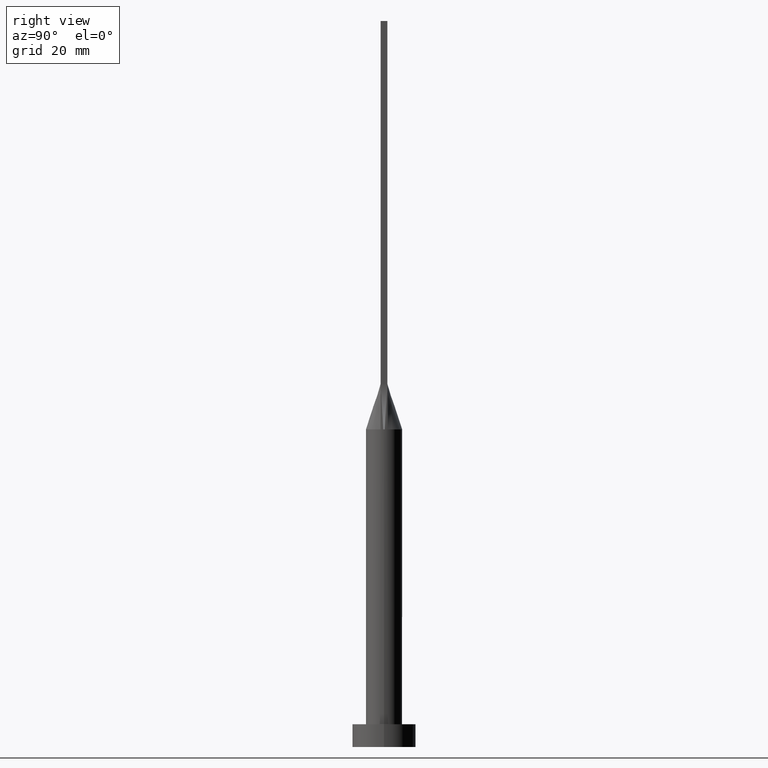
[diagram: clean part render]
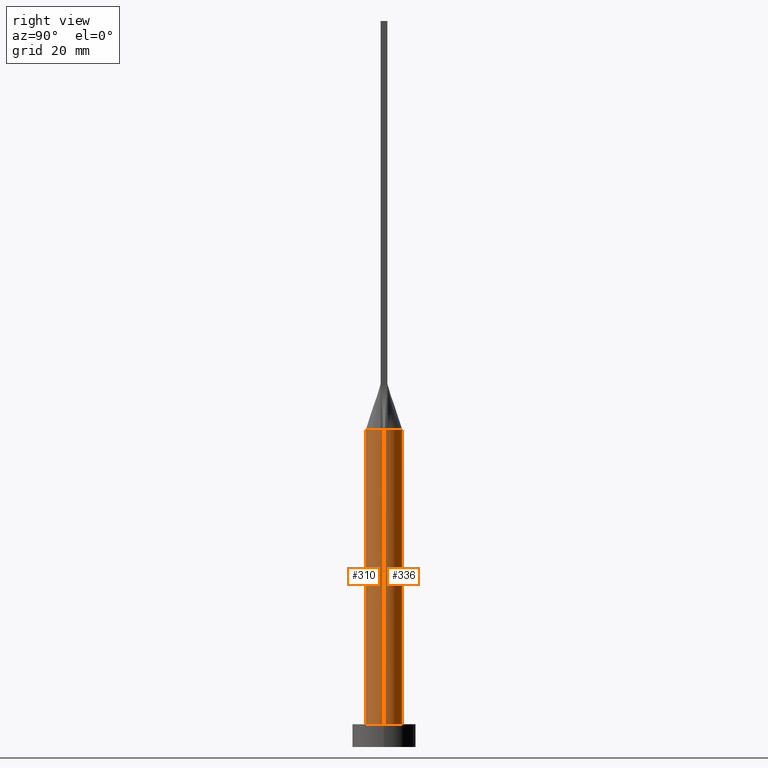
[diagram: same view with one multi-face feature highlighted, each face labeled with its STEP entity id]
A machine part, right view. The highlighted faces form ONE feature: a constant-radius fillet chain: 2 tangent blend faces with common blend radius 4 mm. The faces share edges in the B-rep.
Their STEP definitions:
[1] entity #310 (Cylinder):
#15 = CARTESIAN_POINT ( 'NONE',  ( 0.000000000000000000, 0.000000000000000000, 70.00000000000000000 ) ) ;
#20 = CARTESIAN_POINT ( 'NONE',  ( 0.000000000000000000, 0.000000000000000000, 70.00000000000000000 ) ) ;
#29 = ORIENTED_EDGE ( 'NONE', *, *, #163, .F. ) ;
#56 = CIRCLE ( 'NONE', #247, 4.000000000000000000 ) ;
#71 = CARTESIAN_POINT ( 'NONE',  ( 0.000000000000000000, 0.000000000000000000, 70.00000000000000000 ) ) ;
#73 = AXIS2_PLACEMENT_3D ( 'NONE', #71, #166, #440 ) ;
#88 = DIRECTION ( 'NONE',  ( -0.000000000000000000, -0.000000000000000000, -1.000000000000000000 ) ) ;
#102 = CARTESIAN_POINT ( 'NONE',  ( -4.000000000000000000, 0.000000000000000000, 70.00000000000000000 ) ) ;
#105 = EDGE_CURVE ( 'NONE', #436, #332, #468, .T. ) ;
#109 = EDGE_CURVE ( 'NONE', #198, #524, #318, .T. ) ;
#115 = CARTESIAN_POINT ( 'NONE',  ( 3.999622889843378992, 9.846808768795811108E-16, 70.00000000000000000 ) ) ;
#129 = DIRECTION ( 'NONE',  ( -0.000000000000000000, -0.000000000000000000, -1.000000000000000000 ) ) ;
#163 = EDGE_CURVE ( 'NONE', #554, #466, #235, .T. ) ;
#166 = DIRECTION ( 'NONE',  ( 0.000000000000000000, 0.000000000000000000, 1.000000000000000000 ) ) ;
#167 = DIRECTION ( 'NONE',  ( 0.000000000000000000, 0.000000000000000000, 1.000000000000000000 ) ) ;
#182 = EDGE_CURVE ( 'NONE', #198, #436, #56, .T. ) ;
#183 = DIRECTION ( 'NONE',  ( 1.000000000000000000, 0.000000000000000000, 0.000000000000000000 ) ) ;
#186 = CARTESIAN_POINT ( 'NONE',  ( 0.000000000000000000, 0.000000000000000000, 5.000000000000000000 ) ) ;
#187 = ORIENTED_EDGE ( 'NONE', *, *, #284, .T. ) ;
#188 = CARTESIAN_POINT ( 'NONE',  ( 0.000000000000000000, 0.000000000000000000, 70.00000000000000000 ) ) ;
#198 = VERTEX_POINT ( 'NONE', #367 ) ;
#210 = AXIS2_PLACEMENT_3D ( 'NONE', #186, #370, #556 ) ;
#230 = AXIS2_PLACEMENT_3D ( 'NONE', #188, #373, #559 ) ;
#235 = LINE ( 'NONE', #274, #573 ) ;
#242 = FACE_OUTER_BOUND ( 'NONE', #471, .T. ) ;
#247 = AXIS2_PLACEMENT_3D ( 'NONE', #20, #280, #183 ) ;
#274 = CARTESIAN_POINT ( 'NONE',  ( 4.000000000000000000, 4.898587196589412829E-16, 70.00000000000000000 ) ) ;
#279 = ORIENTED_EDGE ( 'NONE', *, *, #560, .F. ) ;
#280 = DIRECTION ( 'NONE',  ( 0.000000000000000000, 0.000000000000000000, 1.000000000000000000 ) ) ;
#284 = EDGE_CURVE ( 'NONE', #524, #466, #536, .T. ) ;
#302 = CARTESIAN_POINT ( 'NONE',  ( 3.922705552857197908, -0.7845410930675295047, 70.00000000000000000 ) ) ;
#310 = ADVANCED_FACE ( 'NONE', ( #242 ), #424, .T. ) ;
#318 = LINE ( 'NONE', #102, #389 ) ;
#332 = VERTEX_POINT ( 'NONE', #302 ) ;
#335 = ORIENTED_EDGE ( 'NONE', *, *, #105, .F. ) ;
#340 = AXIS2_PLACEMENT_3D ( 'NONE', #15, #167, #347 ) ;
#347 = DIRECTION ( 'NONE',  ( 1.000000000000000000, 0.000000000000000000, 0.000000000000000000 ) ) ;
#367 = CARTESIAN_POINT ( 'NONE',  ( -3.999622889843378992, -9.724176664205578004E-16, 70.00000000000000000 ) ) ;
#370 = DIRECTION ( 'NONE',  ( 0.000000000000000000, 0.000000000000000000, 1.000000000000000000 ) ) ;
#373 = DIRECTION ( 'NONE',  ( -0.000000000000000000, -0.000000000000000000, -1.000000000000000000 ) ) ;
#389 = VECTOR ( 'NONE', #88, 1000.000000000000000 ) ;
#396 = ORIENTED_EDGE ( 'NONE', *, *, #109, .T. ) ;
#407 = CARTESIAN_POINT ( 'NONE',  ( -3.922691619086878134, -0.7845384300002018474, 70.00000000000000000 ) ) ;
#424 = CYLINDRICAL_SURFACE ( 'NONE', #230, 4.000000000000000000 ) ;
#436 = VERTEX_POINT ( 'NONE', #407 ) ;
#440 = DIRECTION ( 'NONE',  ( 1.000000000000000000, -1.421085471520200372E-14, 0.000000000000000000 ) ) ;
#452 = CARTESIAN_POINT ( 'NONE',  ( 4.000000000000000000, 4.898587196589412829E-16, 5.000000000000000000 ) ) ;
#459 = ORIENTED_EDGE ( 'NONE', *, *, #182, .F. ) ;
#466 = VERTEX_POINT ( 'NONE', #452 ) ;
#468 = CIRCLE ( 'NONE', #340, 4.000000000000000000 ) ;
#471 = EDGE_LOOP ( 'NONE', ( #29, #279, #335, #459, #396, #187 ) ) ;
#522 = CARTESIAN_POINT ( 'NONE',  ( -4.000000000000000000, 0.000000000000000000, 5.000000000000000000 ) ) ;
#524 = VERTEX_POINT ( 'NONE', #522 ) ;
#536 = CIRCLE ( 'NONE', #210, 4.000000000000000000 ) ;
#554 = VERTEX_POINT ( 'NONE', #115 ) ;
#556 = DIRECTION ( 'NONE',  ( 1.000000000000000000, 0.000000000000000000, 0.000000000000000000 ) ) ;
#559 = DIRECTION ( 'NONE',  ( -1.000000000000000000, 0.000000000000000000, 0.000000000000000000 ) ) ;
#560 = EDGE_CURVE ( 'NONE', #332, #554, #563, .T. ) ;
#563 = CIRCLE ( 'NONE', #73, 4.000000000000000000 ) ;
#573 = VECTOR ( 'NONE', #129, 1000.000000000000000 ) ;
[2] entity #336 (Cylinder):
#1 = CIRCLE ( 'NONE', #311, 4.000000000000000000 ) ;
#3 = AXIS2_PLACEMENT_3D ( 'NONE', #348, #392, #345 ) ;
#11 = ORIENTED_EDGE ( 'NONE', *, *, #109, .F. ) ;
#12 = CARTESIAN_POINT ( 'NONE',  ( 0.000000000000000000, 0.000000000000000000, 70.00000000000000000 ) ) ;
#24 = CARTESIAN_POINT ( 'NONE',  ( -3.922691944042750123, 0.7845383302616953936, 70.00000000000000000 ) ) ;
#36 = CARTESIAN_POINT ( 'NONE',  ( -0.5465359351457050874, 4.000000000000000000, 69.99999999999998579 ) ) ;
#41 = EDGE_CURVE ( 'NONE', #379, #267, #528, .T. ) ;
#49 = DIRECTION ( 'NONE',  ( 0.000000000000000000, 0.000000000000000000, 1.000000000000000000 ) ) ;
#78 = CARTESIAN_POINT ( 'NONE',  ( 3.922678046951852959, 0.7845356715334603770, 70.00000000000000000 ) ) ;
#79 = CARTESIAN_POINT ( 'NONE',  ( 3.140797583654741931, 2.520780954342106028, 70.00000000000000000 ) ) ;
#82 = CARTESIAN_POINT ( 'NONE',  ( -3.390424152328988416, 2.159240079384419975, 70.00000000000001421 ) ) ;
#87 = CIRCLE ( 'NONE', #493, 4.000000000000000000 ) ;
#88 = DIRECTION ( 'NONE',  ( -0.000000000000000000, -0.000000000000000000, -1.000000000000000000 ) ) ;
#102 = CARTESIAN_POINT ( 'NONE',  ( -4.000000000000000000, 0.000000000000000000, 70.00000000000000000 ) ) ;
#109 = EDGE_CURVE ( 'NONE', #198, #524, #318, .T. ) ;
#111 = CARTESIAN_POINT ( 'NONE',  ( -3.748423346357937280, 1.451418640363469015, 70.00000000000001421 ) ) ;
#114 = CARTESIAN_POINT ( 'NONE',  ( 3.858220138661116128, 1.104977361065556440, 70.00000000000000000 ) ) ;
#115 = CARTESIAN_POINT ( 'NONE',  ( 3.999622889843378992, 9.846808768795811108E-16, 70.00000000000000000 ) ) ;
#117 = CARTESIAN_POINT ( 'NONE',  ( 3.390424152328985752, 2.159240079384420419, 70.00000000000001421 ) ) ;
#120 = CARTESIAN_POINT ( 'NONE',  ( 3.922678046951852959, 0.7845356715334603770, 70.00000000000000000 ) ) ;
#127 = ORIENTED_EDGE ( 'NONE', *, *, #569, .T. ) ;
#129 = DIRECTION ( 'NONE',  ( -0.000000000000000000, -0.000000000000000000, -1.000000000000000000 ) ) ;
#156 = CARTESIAN_POINT ( 'NONE',  ( 2.474203369347174331, 3.177619198138197820, 70.00000000000000000 ) ) ;
#163 = EDGE_CURVE ( 'NONE', #554, #466, #235, .T. ) ;
#179 = DIRECTION ( 'NONE',  ( 1.000000000000000000, 0.000000000000000000, 0.000000000000000000 ) ) ;
#197 = CIRCLE ( 'NONE', #501, 4.000000000000000000 ) ;
#198 = VERTEX_POINT ( 'NONE', #367 ) ;
#205 = EDGE_CURVE ( 'NONE', #267, #198, #1, .T. ) ;
#208 = CARTESIAN_POINT ( 'NONE',  ( 0.000000000000000000, 0.000000000000000000, 5.000000000000000000 ) ) ;
#212 = CARTESIAN_POINT ( 'NONE',  ( -1.091295599582913445, 3.883835547170275682, 70.00000000000001421 ) ) ;
#235 = LINE ( 'NONE', #274, #573 ) ;
#237 = CARTESIAN_POINT ( 'NONE',  ( 0.000000000000000000, 0.000000000000000000, 70.00000000000000000 ) ) ;
#239 = ORIENTED_EDGE ( 'NONE', *, *, #205, .F. ) ;
#251 = DIRECTION ( 'NONE',  ( 0.000000000000000000, 0.000000000000000000, 1.000000000000000000 ) ) ;
#256 = DIRECTION ( 'NONE',  ( 1.000000000000000000, 0.000000000000000000, 0.000000000000000000 ) ) ;
#261 = CYLINDRICAL_SURFACE ( 'NONE', #3, 4.000000000000000000 ) ;
#267 = VERTEX_POINT ( 'NONE', #24 ) ;
#274 = CARTESIAN_POINT ( 'NONE',  ( 4.000000000000000000, 4.898587196589412829E-16, 70.00000000000000000 ) ) ;
#289 = CARTESIAN_POINT ( 'NONE',  ( -3.922691944042750123, 0.7845383302616953936, 70.00000000000000000 ) ) ;
#293 = CARTESIAN_POINT ( 'NONE',  ( 0.5465359351457045323, 4.000000000000000888, 70.00000000000000000 ) ) ;
#311 = AXIS2_PLACEMENT_3D ( 'NONE', #237, #553, #480 ) ;
#312 = ORIENTED_EDGE ( 'NONE', *, *, #441, .F. ) ;
#318 = LINE ( 'NONE', #102, #389 ) ;
#336 = ADVANCED_FACE ( 'NONE', ( #540 ), #261, .T. ) ;
#338 = CARTESIAN_POINT ( 'NONE',  ( -3.140797583654740599, 2.520780954342106916, 70.00000000000000000 ) ) ;
#345 = DIRECTION ( 'NONE',  ( -1.000000000000000000, 0.000000000000000000, 0.000000000000000000 ) ) ;
#348 = CARTESIAN_POINT ( 'NONE',  ( 0.000000000000000000, 0.000000000000000000, 70.00000000000000000 ) ) ;
#367 = CARTESIAN_POINT ( 'NONE',  ( -3.999622889843378992, -9.724176664205578004E-16, 70.00000000000000000 ) ) ;
#379 = VERTEX_POINT ( 'NONE', #78 ) ;
#389 = VECTOR ( 'NONE', #88, 1000.000000000000000 ) ;
#392 = DIRECTION ( 'NONE',  ( -0.000000000000000000, -0.000000000000000000, -1.000000000000000000 ) ) ;
#427 = CARTESIAN_POINT ( 'NONE',  ( -2.055729527861832828, 3.471178582471583063, 70.00000000000001421 ) ) ;
#434 = ORIENTED_EDGE ( 'NONE', *, *, #163, .T. ) ;
#439 = CARTESIAN_POINT ( 'NONE',  ( 1.091295599582912113, 3.883835547170277014, 70.00000000000002842 ) ) ;
#441 = EDGE_CURVE ( 'NONE', #554, #379, #87, .T. ) ;
#443 = CARTESIAN_POINT ( 'NONE',  ( -3.858220138661117460, 1.104977361065555996, 70.00000000000000000 ) ) ;
#452 = CARTESIAN_POINT ( 'NONE',  ( 4.000000000000000000, 4.898587196589412829E-16, 5.000000000000000000 ) ) ;
#466 = VERTEX_POINT ( 'NONE', #452 ) ;
#480 = DIRECTION ( 'NONE',  ( 1.000000000000000000, 0.000000000000000000, 0.000000000000000000 ) ) ;
#488 = CARTESIAN_POINT ( 'NONE',  ( 3.748423346357935948, 1.451418640363468349, 70.00000000000000000 ) ) ;
#493 = AXIS2_PLACEMENT_3D ( 'NONE', #12, #49, #179 ) ;
#501 = AXIS2_PLACEMENT_3D ( 'NONE', #208, #251, #256 ) ;
#520 = CARTESIAN_POINT ( 'NONE',  ( -2.474203369347175219, 3.177619198138199152, 70.00000000000001421 ) ) ;
#522 = CARTESIAN_POINT ( 'NONE',  ( -4.000000000000000000, 0.000000000000000000, 5.000000000000000000 ) ) ;
#524 = VERTEX_POINT ( 'NONE', #522 ) ;
#528 = B_SPLINE_CURVE_WITH_KNOTS ( 'NONE', 3,
 ( #120, #114, #488, #117, #79, #156, #568, #439, #293, #36, #212, #427, #520, #338, #82, #111, #443, #289 ),
 .UNSPECIFIED., .F., .F.,
 ( 4, 2, 2, 2, 2, 2, 2, 2, 4 ),
 ( 0.000000000000000000, 0.1249999999999999167, 0.2499999999999998890, 0.3749999999999998335, 0.4999999999999998890, 0.6249999999999998890, 0.7499999999999998890, 0.8750000000000000000, 1.000000000000000000 ),
 .UNSPECIFIED. ) ;
#537 = EDGE_LOOP ( 'NONE', ( #312, #434, #127, #11, #239, #547 ) ) ;
#540 = FACE_OUTER_BOUND ( 'NONE', #537, .T. ) ;
#547 = ORIENTED_EDGE ( 'NONE', *, *, #41, .F. ) ;
#553 = DIRECTION ( 'NONE',  ( 0.000000000000000000, 0.000000000000000000, 1.000000000000000000 ) ) ;
#554 = VERTEX_POINT ( 'NONE', #115 ) ;
#568 = CARTESIAN_POINT ( 'NONE',  ( 2.055729527861830608, 3.471178582471582619, 70.00000000000000000 ) ) ;
#569 = EDGE_CURVE ( 'NONE', #466, #524, #197, .T. ) ;
#573 = VECTOR ( 'NONE', #129, 1000.000000000000000 ) ;